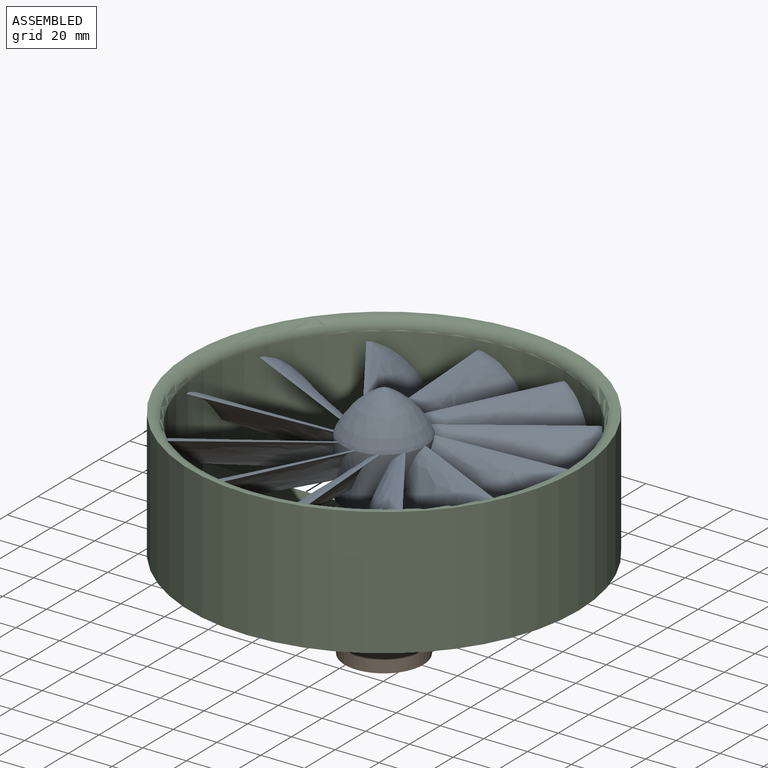
[diagram: assembled view]
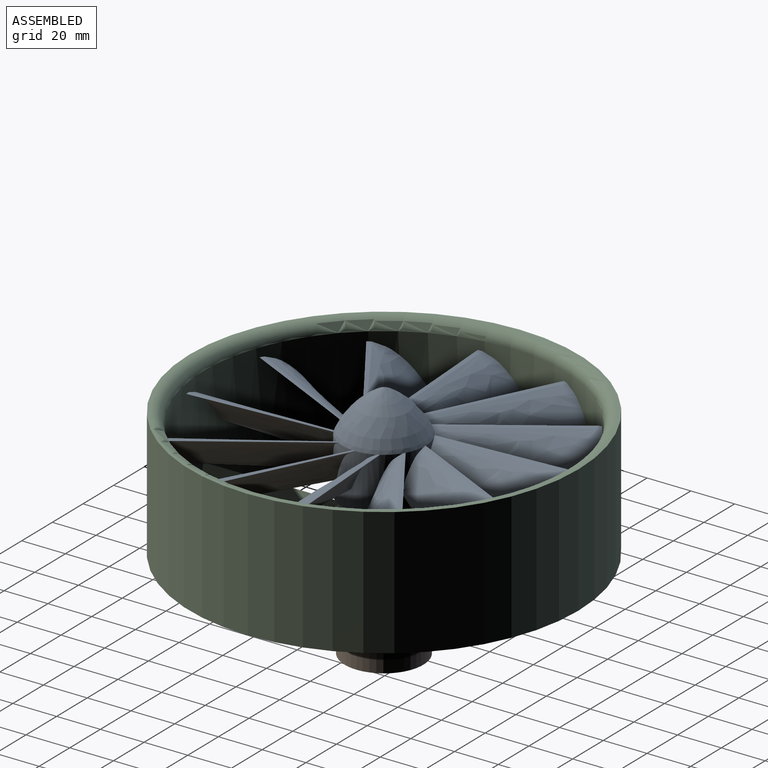
[diagram: assembled view, second angle]
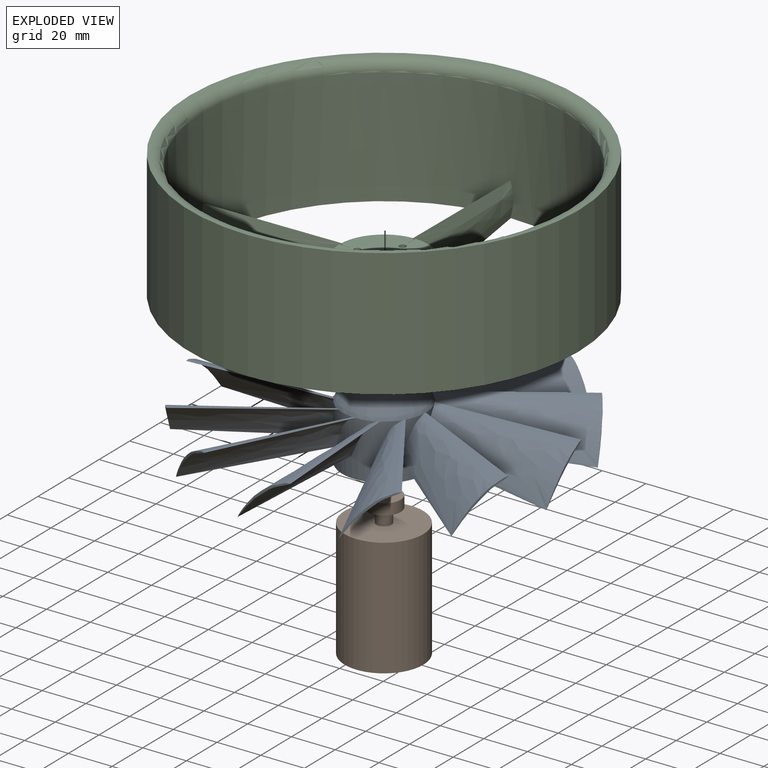
[diagram: exploded view]
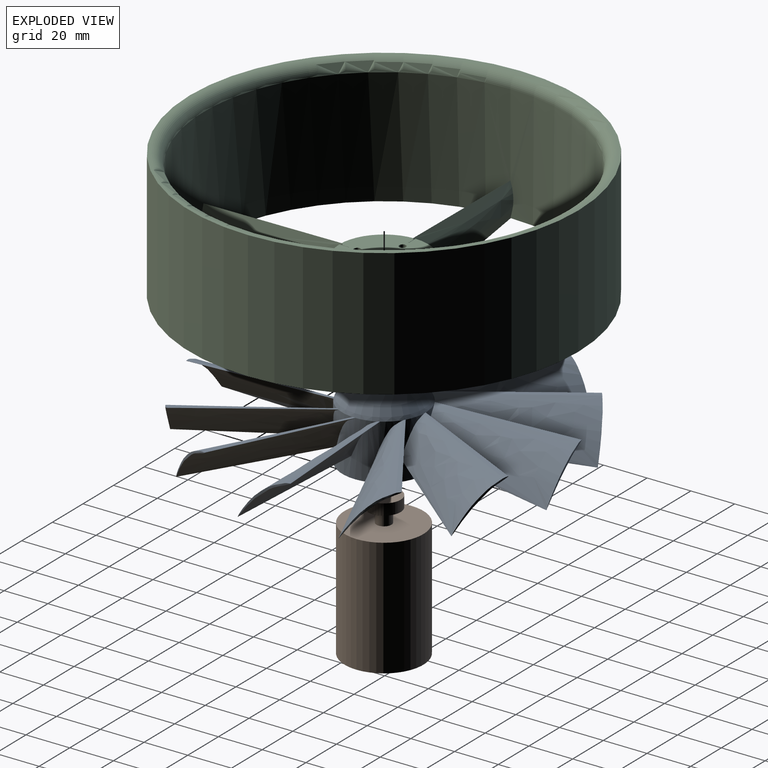
[diagram: exploded view, second angle]
ASSEMBLY  parts=3 mates=2
PART A: 42 faces, bbox 203.2x203.2x25.4 mm
  f0: cylinder r=19.05mm len=38.1mm, axis (0,0,-1), area 2833.2mm2, adj f1,f3,f4,f6,f7,f9,f10,f12
  f1: bspline ~101.6x25.31mm, area 1556.1mm2, adj f0,f2,f3
  f2: cylinder r=81.92mm len=23.83mm, axis (0,0,-1), area 23.5mm2, adj f1,f3
  f3: bspline ~101.6x27.94mm, area 1746.7mm2, adj f0,f1,f2,f41
  f4: bspline ~65.33x43.6mm, area 1556.1mm2, adj f0,f5,f6
  f5: cylinder r=81.92mm len=20.37mm, axis (0,0,-1), area 23.5mm2, adj f4,f6
  f6: bspline ~98.74x63.14mm, area 1746.7mm2, adj f0,f4,f5,f41
  f7: bspline ~62.58x48.38mm, area 1556.1mm2, adj f0,f8,f9
  f8: cylinder r=81.92mm len=20.91mm, axis (0,0,-1), area 23.5mm2, adj f7,f9
  f9: bspline ~95.11x69.42mm, area 1746.7mm2, adj f0,f7,f8,f41
  f10: bspline ~101.6x25.31mm, area 1556.1mm2, adj f0,f11,f12
  f11: cylinder r=81.92mm len=23.83mm, axis (0,0,-1), area 23.5mm2, adj f10,f12
  f12: bspline ~101.6x27.94mm, area 1746.7mm2, adj f0,f10,f11,f41
  f13: bspline ~65.33x43.6mm, area 1556.1mm2, adj f0,f14,f15
  f14: cylinder r=81.92mm len=20.37mm, axis (0,0,-1), area 23.5mm2, adj f13,f15
  f15: bspline ~98.74x63.14mm, area 1746.7mm2, adj f0,f13,f14,f41
  f16: bspline ~62.58x48.38mm, area 1556.1mm2, adj f0,f17,f18
  f17: cylinder r=81.92mm len=20.91mm, axis (0,0,-1), area 23.5mm2, adj f16,f18
  f18: bspline ~95.11x69.42mm, area 1746.7mm2, adj f0,f16,f17,f41
  f19: bspline ~101.6x25.31mm, area 1556.1mm2, adj f0,f20,f21
  f20: cylinder r=81.92mm len=23.83mm, axis (0,0,-1), area 23.5mm2, adj f19,f21
  f21: bspline ~101.6x27.94mm, area 1746.7mm2, adj f0,f19,f20,f41
  f22: bspline ~65.33x43.6mm, area 1556.1mm2, adj f0,f23,f24
  f23: cylinder r=81.92mm len=20.37mm, axis (0,0,-1), area 23.5mm2, adj f22,f24
  f24: bspline ~98.74x63.14mm, area 1746.7mm2, adj f0,f22,f23,f41
  f25: bspline ~62.58x48.38mm, area 1556.1mm2, adj f0,f26,f27
  f26: cylinder r=81.92mm len=20.91mm, axis (0,0,-1), area 23.5mm2, adj f25,f27
  f27: bspline ~95.11x69.42mm, area 1746.7mm2, adj f0,f25,f26,f28,f41
  f28: cylinder r=19.05mm len=10.84mm, axis (0,0,-1), area 33mm2, adj f0,f27,f29,f34,f41
  f29: bspline ~101.6x25.31mm, area 1556.1mm2, adj f0,f28,f30,f34
  f30: cylinder r=81.92mm len=23.83mm, axis (0,0,-1), area 23.5mm2, adj f29,f34
  f31: plane 38.1x38.1mm, normal (0,0,-1), area 1008.3mm2, adj f0,f32
  f32: cylinder r=6.48mm len=12.95mm, axis (0,0,-1), area 206.7mm2, adj f31,f33
  f33: plane 12.95x12.95mm, normal (0,0,-1), area 131.8mm2, adj f32
  f34: bspline ~101.6x27.94mm, area 1746.8mm2, adj f0,f28,f29,f30,f41
  f35: bspline ~65.33x43.6mm, area 1556.1mm2, adj f0,f36,f37
  f36: cylinder r=81.92mm len=20.37mm, axis (0,0,-1), area 23.5mm2, adj f35,f37
  f37: bspline ~98.74x63.14mm, area 1746.7mm2, adj f0,f35,f36,f41
  f38: bspline ~62.58x48.38mm, area 1556.1mm2, adj f0,f39,f40
  f39: cylinder r=81.92mm len=20.91mm, axis (0,0,-1), area 23.5mm2, adj f38,f40
  f40: bspline ~95.11x69.42mm, area 1746.7mm2, adj f0,f38,f39,f41
  f41: revolved ~38.08x38.02mm, area 0mm2, adj f0,f3,f6,f9,f12,f15,f18,f21
PART B: 7 faces, bbox 36x36x65.4 mm
  f0: cylinder r=18mm len=54mm, axis (0,0,-1), area 6105.9mm2, adj f1,f2
  f1: plane 35.99x35.99mm, normal (0,0,1), area 980.5mm2, adj f0,f3
  f2: plane 35.99x35.99mm, normal (0,0,-1), area 1017.4mm2, adj f0
  f3: cylinder r=3.43mm len=6.86mm, axis (0,0,-1), area 136.8mm2, adj f1,f6
  f4: cylinder r=7.62mm len=15.24mm, axis (0,0,-1), area 243.2mm2, adj f5,f6
  f5: plane 15.24x15.24mm, normal (0,0,1), area 182.4mm2, adj f4
  f6: plane 15.24x15.24mm, normal (0,0,-1), area 145.5mm2, adj f3,f4
PART C: 35 faces, bbox 189.7x189.7x71.6 mm
  f0: plane 38.1x38.1mm, normal (0,0,-1), area 1065.3mm2, adj f26,f27,f28,f29,f30,f32
  f1: cylinder r=82.55mm len=165.1mm, axis (0,0,-1), area 27554.6mm2, adj f4,f5,f6,f10,f11,f15,f16,f21
  f2: cylinder r=88.9mm len=177.8mm, axis (0,0,-1), area 32632mm2, adj f3,f4
  f3: plane 177.8x177.8mm, normal (0,0,1), area 704.3mm2, adj f2,f31
  f4: plane 177.8x177.8mm, normal (0,0,-1), area 3420mm2, adj f1,f2,f5,f6,f10,f11,f15,f16
  f5: bspline ~67.82x26.52mm, area 1316.6mm2, adj f1,f4,f6,f7,f8,f9,f20,f33
  f6: bspline ~67.82x26.52mm, area 1316.6mm2, adj f1,f4,f5,f7,f8,f9,f20,f33
  f7: plane 0.44x0.1mm, normal (0,1,0), area 0mm2, adj f5,f6,f8,f20
  f8: plane 3.16x0.39mm, normal (0,0,1), area 1.2mm2, adj f5,f6,f7,f9
  f9: plane 0.61x0.38mm, normal (0,1,0), area 0.1mm2, adj f5,f6,f8
  f10: bspline ~67.82x26.52mm, area 1316.6mm2, adj f1,f4,f11,f12,f13,f14,f20,f33
  f11: bspline ~67.82x26.52mm, area 1316.6mm2, adj f1,f4,f10,f12,f13,f14,f20,f33
  f12: plane 0.44x0.1mm, normal (1,0,0), area 0mm2, adj f10,f11,f13,f20
  f13: plane 3.16x0.39mm, normal (0,0,1), area 1.2mm2, adj f10,f11,f12,f14
  f14: plane 0.61x0.38mm, normal (1,0,0), area 0.1mm2, adj f10,f11,f13
  f15: bspline ~67.82x26.52mm, area 1316.6mm2, adj f1,f4,f16,f17,f18,f19,f20,f33
  f16: bspline ~67.82x26.52mm, area 1316.6mm2, adj f1,f4,f15,f17,f18,f19,f20,f33
  f17: plane 0.44x0.1mm, normal (0,-1,0), area 0mm2, adj f15,f16,f18,f20
  f18: plane 3.16x0.39mm, normal (0,0,1), area 1.2mm2, adj f15,f16,f17,f19
  f19: plane 0.61x0.38mm, normal (0,-1,0), area 0.1mm2, adj f15,f16,f18
  f20: plane 40.64x40.64mm, normal (0,0,1), area 1214.9mm2, adj f5,f6,f7,f10,f11,f12,f15,f16
  f21: bspline ~67.82x26.52mm, area 1316.6mm2, adj f1,f4,f20,f22,f23,f24,f25,f33
  f22: bspline ~67.82x26.52mm, area 1316.6mm2, adj f1,f4,f20,f21,f23,f24,f25,f33
  f23: plane 0.44x0.1mm, normal (-1,0,0), area 0mm2, adj f20,f21,f22,f24
  f24: plane 3.16x0.39mm, normal (0,0,1), area 1.2mm2, adj f21,f22,f23,f25
  f25: plane 0.61x0.38mm, normal (-1,0,0), area 0.1mm2, adj f21,f22,f24
  f26: cylinder r=3.81mm len=7.62mm, axis (0,0,1), area 60.8mm2, adj f0,f20
  f27: cylinder r=1.52mm len=3.05mm, axis (0,0,1), area 24.3mm2, adj f0,f20
  f28: cylinder r=1.52mm len=3.05mm, axis (0,0,1), area 24.3mm2, adj f0,f20
  f29: cylinder r=1.52mm len=3.05mm, axis (0,0,1), area 24.3mm2, adj f0,f20
  f30: cylinder r=1.52mm len=3.05mm, axis (0,0,1), area 24.3mm2, adj f0,f20
  f31: torus R=87.63mm, axis (0,0,1), area 4231.4mm2, adj f1,f3
  f32: cylinder r=19.05mm len=38.1mm, axis (0,0,1), area 3101mm2, adj f0,f34
  f33: cylinder r=20.32mm len=40.64mm, axis (0,0,1), area 3358.1mm2, adj f5,f6,f10,f11,f15,f16,f20,f21
  f34: plane 40.64x40.64mm, normal (0,0,-1), area 157.1mm2, adj f32,f33
PLACE A t=(-129.04,-46.61,43.12)mm
PLACE B t=(-129.04,-46.61,-22.31)mm
PLACE C t=(-129.04,-46.61,31.69)mm
MATE fastened A.f0 <-> B.f4  axis (0,0,-1) through (-129.04,-46.61,43.12)mm
MATE fastened B.f3 <-> C.f32  axis (0,0,1) through (-129.04,-46.61,31.69)mm
